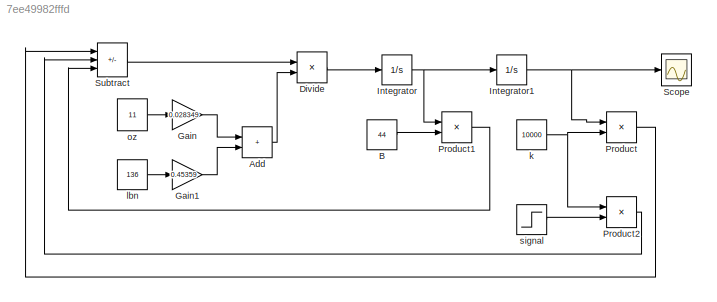
MODEL slx_7ee49982fffd
KIND model
CONFIG AbsTol = auto
CONFIG EnableMultiTasking = off
CONFIG FixedStep = auto
CONFIG MaxStep = 0.01
CONFIG MinStep = auto
CONFIG RelTol = 1e-3
CONFIG SampleTimeConstraint = Unconstrained
CONFIG SolverName = VariableStepAuto
CONFIG StartTime = 0.0
CONFIG StopTime = 10
BLOCK [Sum] Add
  IconShape = rectangular
BLOCK [Constant] B
  Value = 44
BLOCK [Product] Divide
  Inputs = */
BLOCK [Gain] Gain
  Gain = 0.028349
BLOCK [Gain] Gain1
  Gain = 0.45359
BLOCK [Integrator] Integrator
BLOCK [Integrator] Integrator1
BLOCK [Product] Product
BLOCK [Product] Product1
BLOCK [Product] Product2
BLOCK [Scope] Scope
  Floating = off
  NumInputPorts = 1
  ScopeSpecificationString = Simulink.scopes.TimeScopeBlockCfg('CurrentConfiguration', extmgr.ConfigurationSet(extmgr.Configuration('Core','General UI',true),extmgr.Configuration('Core','Source UI',true),extmgr.Configuration('Sources','WiredSimulink',true),extmgr.Configuration('Visuals','Time Domain',true,'SerializedDisplays',{struct('MinYLimReal','-0.23943','MaxYLimReal','2.15489','YLabelReal','','MinYLimMag','0.00000','MaxY...<+1360ch>
BLOCK [Sum] Subtract
  IconShape = rectangular
  Inputs = -+-
BLOCK [Constant] k
  Value = 10000
BLOCK [Constant] lbn
  Value = 136
BLOCK [Constant] oz
  Value = 11
BLOCK [Step] signal
  SampleTime = 0
  Time = 0.01
LINE Add:1 -> Divide:2
LINE B:1 -> Product1:2
LINE Divide:1 -> Integrator:1
LINE Gain1:1 -> Add:2
LINE Gain:1 -> Add:1
NET Integrator1:1 -> Product:1, Scope:1
NET Integrator:1 -> Integrator1:1, Product1:1
LINE Product1:1 -> Subtract:3
LINE Product2:1 -> Subtract:2
LINE Product:1 -> Subtract:1
LINE Subtract:1 -> Divide:1
NET k:1 -> Product2:1, Product:2
LINE lbn:1 -> Gain1:1
LINE oz:1 -> Gain:1
LINE signal:1 -> Product2:2
note: NET lines group one-source signal fan-out (src -> all destinations, sorted); 1:1 wires keep LINE
